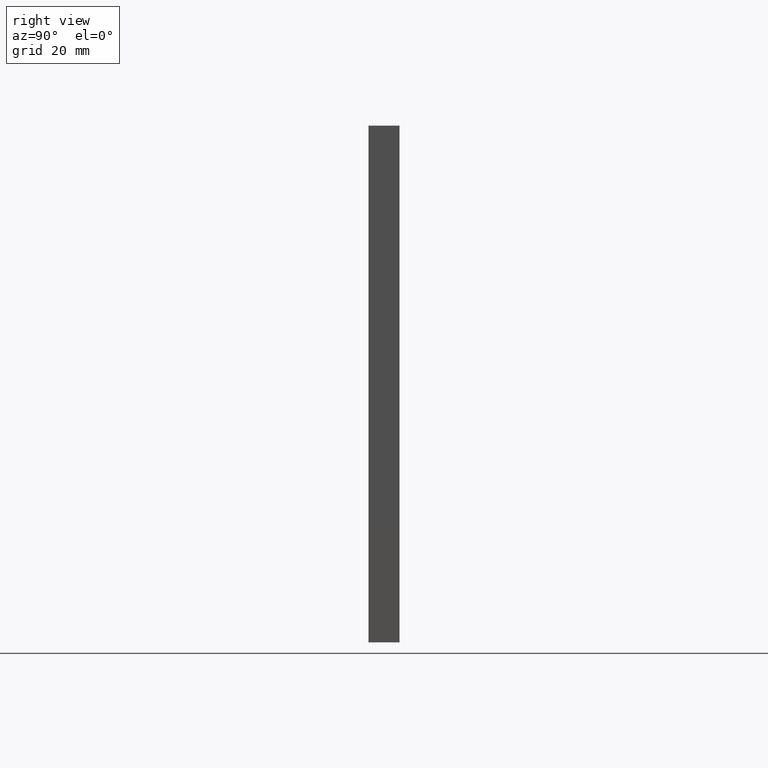
[diagram: clean part render]
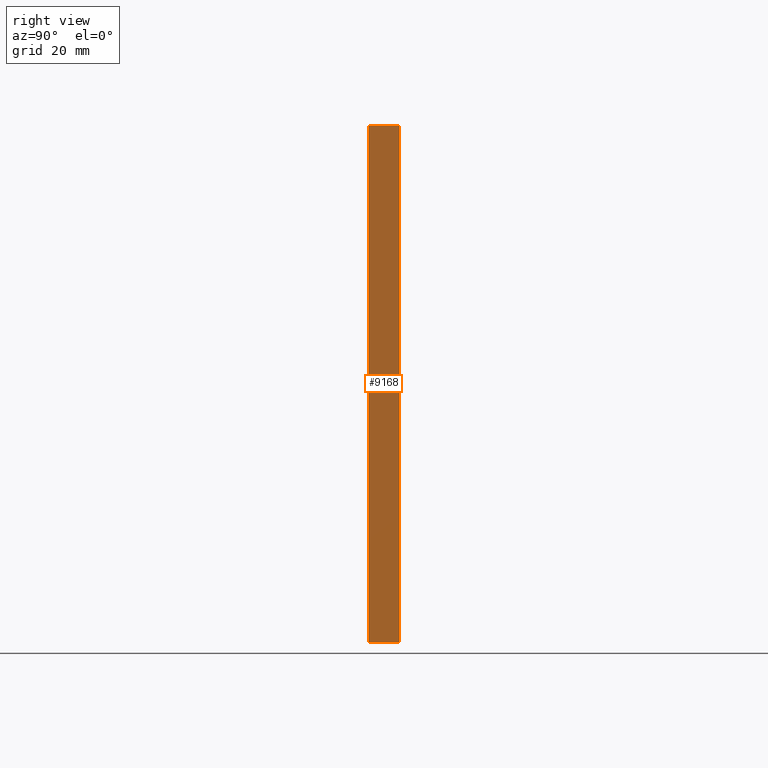
[diagram: same view with one face highlighted and labeled with its STEP entity id]
A machine part, right view. The second image highlights one B-rep face of the part: STEP entity #9168.
In plain terms, the highlighted planar face has unit normal (-1, 0, 0).
Its self-contained STEP definition (entity closure, byte-faithful):
#118 = VERTEX_POINT ( 'NONE', #5814 ) ;
#152 = LINE ( 'NONE', #9663, #9934 ) ;
#369 = DIRECTION ( 'NONE',  ( -0.000000000000000000, -1.000000000000000000, -0.000000000000000000 ) ) ;
#582 = EDGE_CURVE ( 'NONE', #10798, #3495, #9813, .T. ) ;
#1356 = EDGE_LOOP ( 'NONE', ( #12022, #5201, #12655, #11618 ) ) ;
#2946 = VECTOR ( 'NONE', #369, 1000.000000000000000 ) ;
#3289 = CARTESIAN_POINT ( 'NONE',  ( 50.00000000000000000, 6.000000000000000000, -50.00000000000000000 ) ) ;
#3336 = EDGE_CURVE ( 'NONE', #6769, #118, #152, .T. ) ;
#3495 = VERTEX_POINT ( 'NONE', #7977 ) ;
#3893 = LINE ( 'NONE', #11865, #8767 ) ;
#4315 = PLANE ( 'NONE',  #8217 ) ;
#4528 = VECTOR ( 'NONE', #4939, 1000.000000000000000 ) ;
#4939 = DIRECTION ( 'NONE',  ( -6.938893903907228378E-17, -0.000000000000000000, -1.000000000000000000 ) ) ;
#5138 = CARTESIAN_POINT ( 'NONE',  ( 50.00000000000000000, 6.000000000000000000, -50.00000000000000000 ) ) ;
#5201 = ORIENTED_EDGE ( 'NONE', *, *, #582, .F. ) ;
#5328 = DIRECTION ( 'NONE',  ( -6.938893903907228378E-17, -0.000000000000000000, -1.000000000000000000 ) ) ;
#5717 = CARTESIAN_POINT ( 'NONE',  ( 50.00000000000000000, 6.000000000000000000, -50.00000000000000000 ) ) ;
#5756 = DIRECTION ( 'NONE',  ( -0.000000000000000000, -1.000000000000000000, -0.000000000000000000 ) ) ;
#5814 = CARTESIAN_POINT ( 'NONE',  ( 50.00000000000000711, 0.000000000000000000, 50.00000000000000000 ) ) ;
#6769 = VERTEX_POINT ( 'NONE', #9947 ) ;
#6812 = LINE ( 'NONE', #8826, #4528 ) ;
#7917 = EDGE_CURVE ( 'NONE', #6769, #10798, #6812, .T. ) ;
#7977 = CARTESIAN_POINT ( 'NONE',  ( 50.00000000000000000, 0.000000000000000000, -50.00000000000000000 ) ) ;
#8217 = AXIS2_PLACEMENT_3D ( 'NONE', #3289, #11130, #9032 ) ;
#8767 = VECTOR ( 'NONE', #5328, 1000.000000000000000 ) ;
#8826 = CARTESIAN_POINT ( 'NONE',  ( 50.00000000000000000, 6.000000000000000000, -50.00000000000000000 ) ) ;
#9032 = DIRECTION ( 'NONE',  ( 6.938893903907227145E-17, 0.000000000000000000, 1.000000000000000000 ) ) ;
#9168 = ADVANCED_FACE ( 'NONE', ( #9551 ), #4315, .F. ) ;
#9551 = FACE_OUTER_BOUND ( 'NONE', #1356, .T. ) ;
#9663 = CARTESIAN_POINT ( 'NONE',  ( 50.00000000000000711, 6.000000000000000000, 50.00000000000000000 ) ) ;
#9813 = LINE ( 'NONE', #5138, #2946 ) ;
#9934 = VECTOR ( 'NONE', #5756, 1000.000000000000000 ) ;
#9947 = CARTESIAN_POINT ( 'NONE',  ( 50.00000000000000711, 6.000000000000000000, 50.00000000000000000 ) ) ;
#10798 = VERTEX_POINT ( 'NONE', #5717 ) ;
#11130 = DIRECTION ( 'NONE',  ( -1.000000000000000000, 0.000000000000000000, 6.938893903907227145E-17 ) ) ;
#11466 = EDGE_CURVE ( 'NONE', #118, #3495, #3893, .T. ) ;
#11618 = ORIENTED_EDGE ( 'NONE', *, *, #3336, .T. ) ;
#11865 = CARTESIAN_POINT ( 'NONE',  ( 50.00000000000000000, 0.000000000000000000, -50.00000000000000000 ) ) ;
#12022 = ORIENTED_EDGE ( 'NONE', *, *, #11466, .T. ) ;
#12655 = ORIENTED_EDGE ( 'NONE', *, *, #7917, .F. ) ;